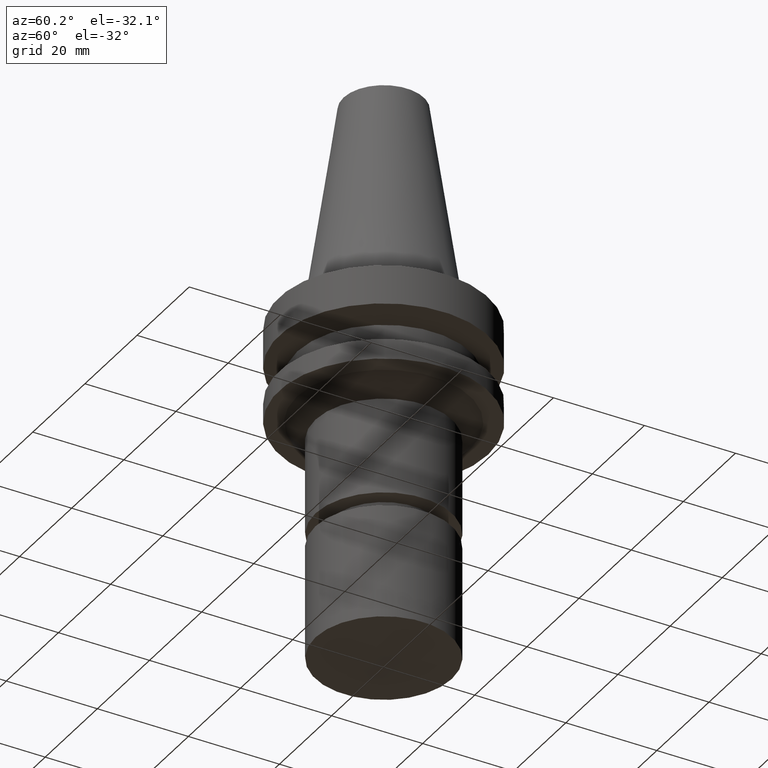
[diagram: clean part render]
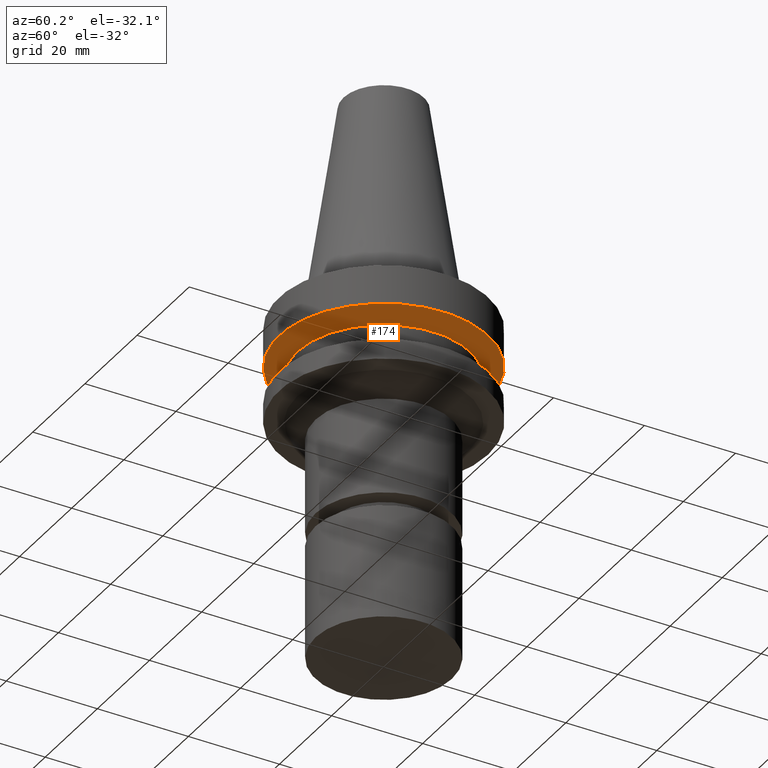
[diagram: same view with one face highlighted and labeled with its STEP entity id]
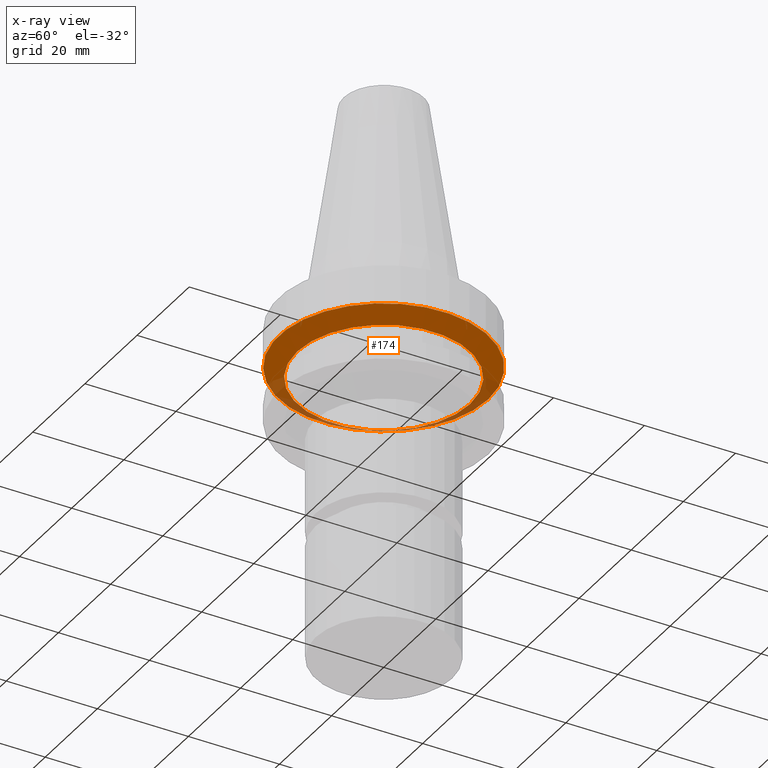
[diagram: x-ray of the same camera — body ghosted, the highlighted face saturated]
A machine part, auxiliary view. The second image highlights one B-rep face of the part: STEP entity #174.
The next image is the same camera in x-ray: the body ghosted, the highlighted face saturated — about 17% of this face is hidden behind the body in this view.
In plain terms, the highlighted conical surface has half-angle 60 deg.
Its self-contained STEP definition (entity closure, byte-faithful):
#110=EDGE_CURVE('Unnamed[1]',#256,#256,#257,.T.);
#164=EDGE_CURVE('Unnamed[1]',#338,#338,#339,.T.);
#174=ADVANCED_FACE('Unnamed[1]',(#352,#353),#354,.T.);
#256=VERTEX_POINT('',#446);
#257=CIRCLE('',#447,19.0);
#338=VERTEX_POINT('',#546);
#339=CIRCLE('',#547,23.0);
#352=FACE_BOUND('',#564,.T.);
#353=FACE_BOUND('',#565,.T.);
#354=CONICAL_SURFACE('',#566,21.0,1.04719755058881);
#446=CARTESIAN_POINT('',(7.29240495619202E-016,19.0,-11.90940108));
#447=AXIS2_PLACEMENT_3D('',#642,#643,#644);
#546=CARTESIAN_POINT('',(5.87830463590729E-016,23.0,-9.59999999999999));
#547=AXIS2_PLACEMENT_3D('',#732,#733,#734);
#564=EDGE_LOOP('',(#747));
#565=EDGE_LOOP('',(#748));
#566=AXIS2_PLACEMENT_3D('',#749,#750,#751);
#642=CARTESIAN_POINT('',(7.29240495619202E-016,1.4584809912384E-015,-11.90940108));
#643=DIRECTION('',(6.12323399573677E-017,1.22464679914735E-016,-1.0));
#644=DIRECTION('',(-1.23259516440783E-032,1.0,1.22464679914735E-016));
#732=CARTESIAN_POINT('',(5.87830463590729E-016,1.17566092718146E-015,-9.59999999999999));
#733=DIRECTION('',(6.12323399573677E-017,1.22464679914735E-016,-1.0));
#734=DIRECTION('',(-1.23259516440783E-032,1.0,1.22464679914735E-016));
#747=ORIENTED_EDGE('',*,*,#110,.F.);
#748=ORIENTED_EDGE('',*,*,#164,.T.);
#749=CARTESIAN_POINT('',(6.58535479604966E-016,1.31707095920993E-015,-10.75470054));
#750=DIRECTION('',(-6.12323399573677E-017,-1.22464679914735E-016,1.0));
#751=DIRECTION('',(-1.23259516440783E-032,1.0,1.22464679914735E-016));